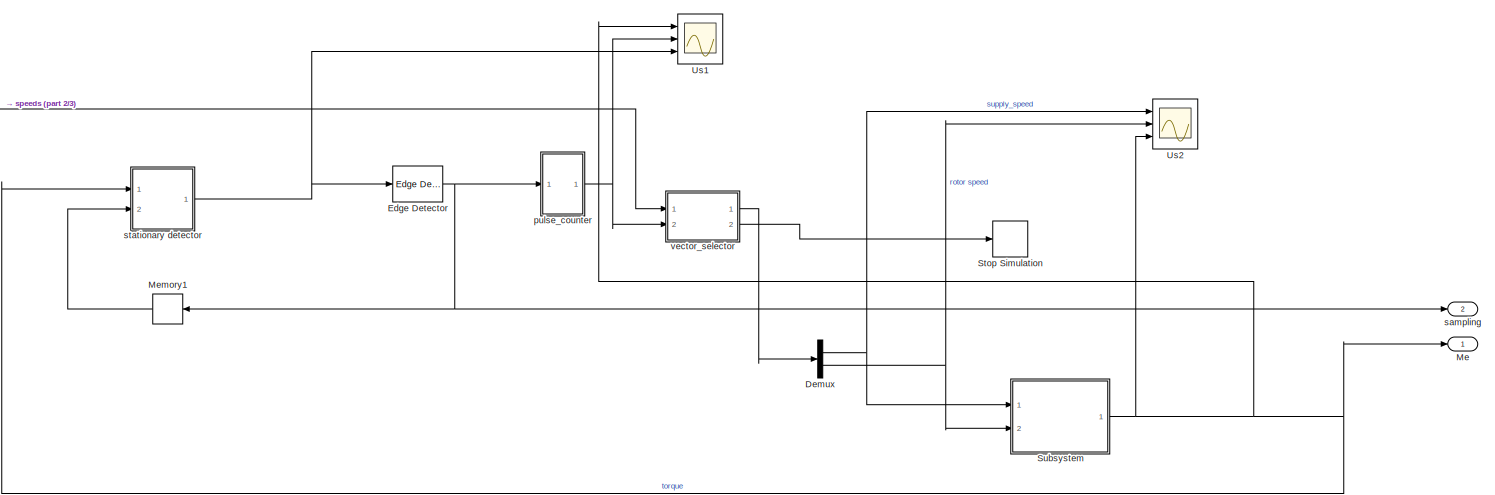
[diagram: root canvas - part 1/3, full width, top band]
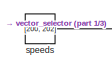
[diagram: root canvas - part 2/3, top left region]
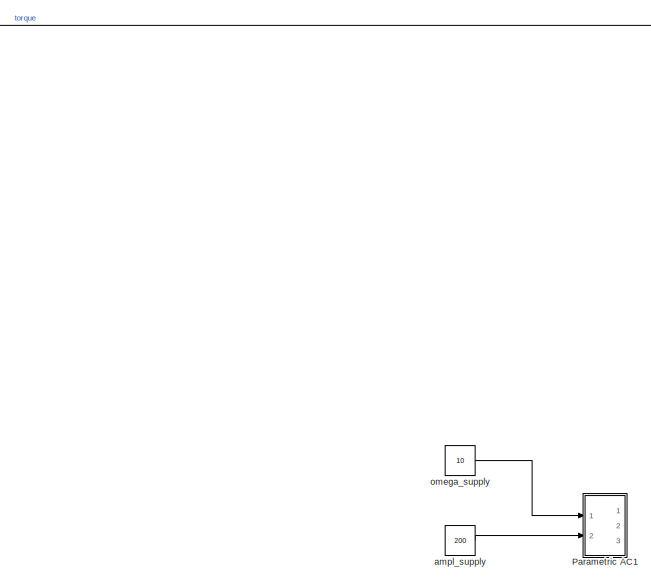
[diagram: root canvas - part 3/3, bottom center region]
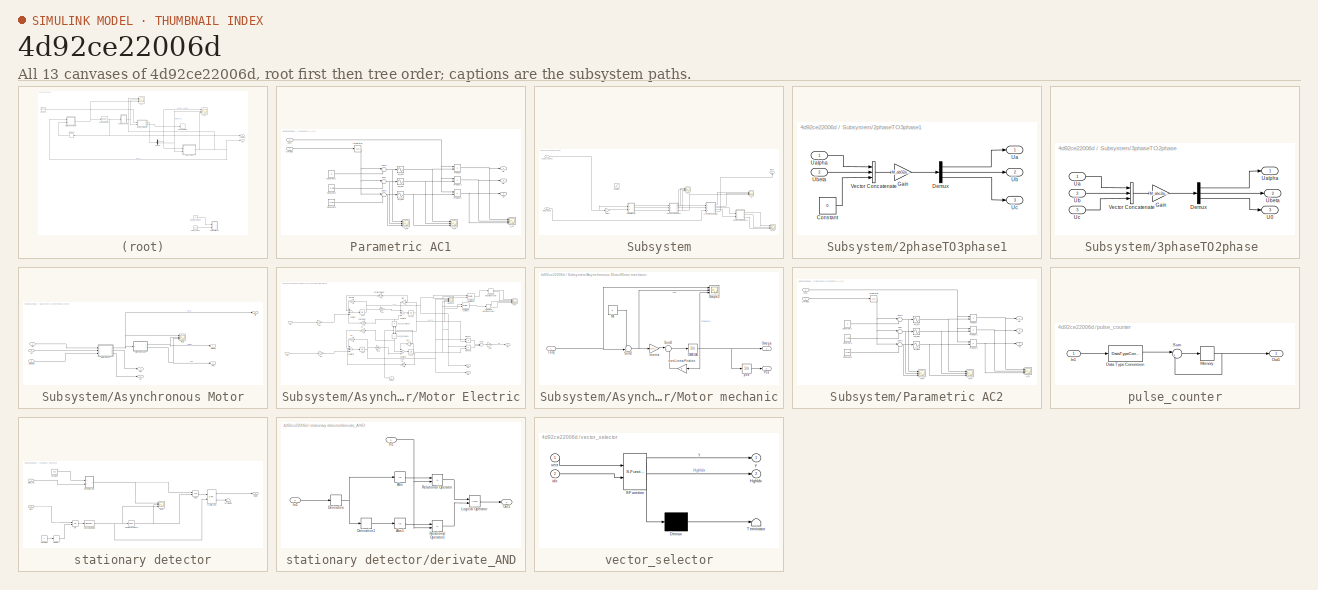
[diagram: thumbnail index - all 13 canvases of the model, root first then tree order]
MODEL slx_4d92ce22006d
KIND model
CONFIG AbsTol = auto
CONFIG FixedStep = 0.0005
CONFIG MaxStep = auto
CONFIG MinStep = auto
CONFIG RelTol = 1e-3
CONFIG SampleTimeConstraint = Unconstrained
CONFIG Solver = FixedStepAuto
CONFIG SolverMode = Auto
CONFIG SolverName = FixedStepAuto
CONFIG StartTime = 0.0
CONFIG StopTime = 10
BLOCK [Demux] Demux
  DisplayOption = bar
  Outputs = 2
  Ports = [1, 2]
BLOCK [Reference] Edge Detector  REF=powerlib_meascontrol/Logic/Edge Detector
  Ports = [1, 1]
  SourceBlock = powerlib_meascontrol/Logic/Edge Detector
  SourceType = Edge Detector
BLOCK [Outport] Me
  IconDisplay = Port number
BLOCK [Memory] Memory1
  X0 = 1
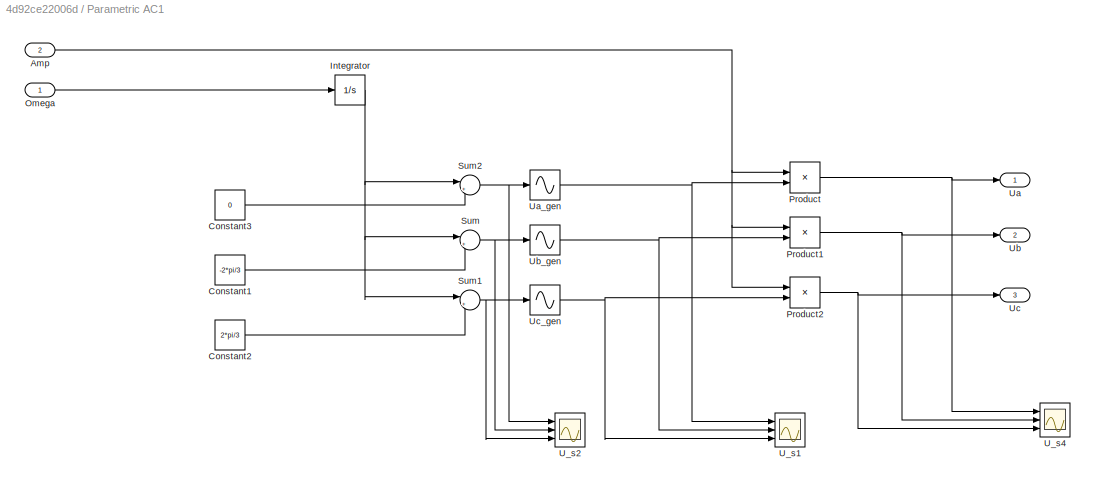
BLOCK [SubSystem] Parametric AC1
  Commented = on
  Ports = [2, 3]
  RequestExecContextInheritance = off
  Variant = off
BLOCK [Inport] Parametric AC1/Amp
  IconDisplay = Port number
  Port = 2
BLOCK [Constant] Parametric AC1/Constant1
  Value = -2*pi/3
BLOCK [Constant] Parametric AC1/Constant2
  Value = 2*pi/3
BLOCK [Constant] Parametric AC1/Constant3
  Value = 0
BLOCK [Integrator] Parametric AC1/Integrator
  Ports = [1, 1]
  WrapState = on
BLOCK [Inport] Parametric AC1/Omega
  IconDisplay = Port number
BLOCK [Product] Parametric AC1/Product
  InputSameDT = off
  OutDataTypeStr = Inherit: Inherit via internal rule
  Ports = [2, 1]
  RndMeth = Floor
  SaturateOnIntegerOverflow = off
BLOCK [Product] Parametric AC1/Product1
  InputSameDT = off
  OutDataTypeStr = Inherit: Inherit via internal rule
  Ports = [2, 1]
  RndMeth = Floor
  SaturateOnIntegerOverflow = off
BLOCK [Product] Parametric AC1/Product2
  InputSameDT = off
  OutDataTypeStr = Inherit: Inherit via internal rule
  Ports = [2, 1]
  RndMeth = Floor
  SaturateOnIntegerOverflow = off
BLOCK [Sum] Parametric AC1/Sum
  IconShape = round
  InputSameDT = off
  Inputs = |++
  OutDataTypeStr = Inherit: Inherit via internal rule
  Ports = [2, 1]
  SaturateOnIntegerOverflow = off
BLOCK [Sum] Parametric AC1/Sum1
  IconShape = round
  InputSameDT = off
  Inputs = |++
  OutDataTypeStr = Inherit: Inherit via internal rule
  Ports = [2, 1]
  SaturateOnIntegerOverflow = off
BLOCK [Sum] Parametric AC1/Sum2
  IconShape = round
  InputSameDT = off
  Inputs = |++
  OutDataTypeStr = Inherit: Inherit via internal rule
  Ports = [2, 1]
  SaturateOnIntegerOverflow = off
BLOCK [Scope] Parametric AC1/U_s1
  NumInputPorts = 3
  Ports = [3]
  ScopeSpecificationString = Simulink.scopes.TimeScopeBlockCfg('CurrentConfiguration', extmgr.ConfigurationSet(extmgr.Configuration('Core','General UI',true),extmgr.Configuration('Core','Source UI',true),extmgr.Configuration('Sources','WiredSimulink',true,'DataLoggingVariableName','ScopeData9'),extmgr.Configuration('Visuals','Time Domain',true,'SerializedDisplays',{struct('MinYLimReal','-1.25','MaxYLimReal','1.25','YLabelReal...<+1415ch>
BLOCK [Scope] Parametric AC1/U_s2
  NumInputPorts = 3
  Ports = [3]
  ScopeSpecificationString = Simulink.scopes.TimeScopeBlockCfg('CurrentConfiguration', extmgr.ConfigurationSet(extmgr.Configuration('Core','General UI',true),extmgr.Configuration('Core','Source UI',true),extmgr.Configuration('Sources','WiredSimulink',true,'DataLoggingVariableName','ScopeData10'),extmgr.Configuration('Visuals','Time Domain',true,'SerializedDisplays',{struct('MinYLimReal','-6.54476','MaxYLimReal','6.54422','YLa...<+1427ch>
BLOCK [Scope] Parametric AC1/U_s4
  NumInputPorts = 3
  Ports = [3]
  ScopeSpecificationString = Simulink.scopes.TimeScopeBlockCfg('CurrentConfiguration', extmgr.ConfigurationSet(extmgr.Configuration('Core','General UI',true),extmgr.Configuration('Core','Source UI',true),extmgr.Configuration('Sources','WiredSimulink',true,'DataLoggingVariableName','ScopeData8'),extmgr.Configuration('Visuals','Time Domain',true,'SerializedDisplays',{struct('MinYLimReal','-49999.99999','MaxYLimReal','49999.9999...<+1493ch>
BLOCK [Outport] Parametric AC1/Ua
  IconDisplay = Port number
BLOCK [Sin] Parametric AC1/Ua_gen
  Ports = [1, 1]
  SampleTime = 0
  TimeSource = Use external signal
BLOCK [Outport] Parametric AC1/Ub
  IconDisplay = Port number
  Port = 2
BLOCK [Sin] Parametric AC1/Ub_gen
  Ports = [1, 1]
  SampleTime = 0
  TimeSource = Use external signal
BLOCK [Outport] Parametric AC1/Uc
  IconDisplay = Port number
  Port = 3
BLOCK [Sin] Parametric AC1/Uc_gen
  Ports = [1, 1]
  SampleTime = 0
  TimeSource = Use external signal
BLOCK [Stop] Stop Simulation
BLOCK [SubSystem] Subsystem
  Ports = [2, 1]
  RequestExecContextInheritance = off
  Variant = off
BLOCK [SubSystem] Subsystem/2phaseTO3phase1
  Ports = [2, 3]
  RequestExecContextInheritance = off
  Variant = off
BLOCK [Constant] Subsystem/2phaseTO3phase1/Constant
  Value = 0
BLOCK [Demux] Subsystem/2phaseTO3phase1/Demux
  DisplayOption = bar
  Outputs = 3
  Ports = [1, 3]
BLOCK [Gain] Subsystem/2phaseTO3phase1/Gain
  Gain = M_ab02abc
  Multiplication = Matrix(K*u)
  OutDataTypeStr = Inherit: Inherit via internal rule
  ParamDataTypeStr = Inherit: Inherit via internal rule
  SaturateOnIntegerOverflow = off
BLOCK [Outport] Subsystem/2phaseTO3phase1/Ua
  IconDisplay = Port number
BLOCK [Inport] Subsystem/2phaseTO3phase1/Ualpha
  IconDisplay = Port number
BLOCK [Outport] Subsystem/2phaseTO3phase1/Ub
  IconDisplay = Port number
  Port = 2
BLOCK [Inport] Subsystem/2phaseTO3phase1/Ubeta
  IconDisplay = Port number
  Port = 2
BLOCK [Outport] Subsystem/2phaseTO3phase1/Uc
  IconDisplay = Port number
  Port = 3
BLOCK [Concatenate] Subsystem/2phaseTO3phase1/Vector Concatenate
  NumInputs = 3
  Ports = [3, 1]
BLOCK [SubSystem] Subsystem/3phaseTO2phase 
  Ports = [3, 3]
  RequestExecContextInheritance = off
  Variant = off
BLOCK [Demux] Subsystem/3phaseTO2phase /Demux
  DisplayOption = bar
  Outputs = 3
  Ports = [1, 3]
BLOCK [Gain] Subsystem/3phaseTO2phase /Gain
  Gain = M_abc2ab0
  Multiplication = Matrix(K*u)
  OutDataTypeStr = Inherit: Inherit via internal rule
  ParamDataTypeStr = Inherit: Inherit via internal rule
  SaturateOnIntegerOverflow = off
BLOCK [Outport] Subsystem/3phaseTO2phase /U0
  IconDisplay = Port number
  Port = 3
BLOCK [Inport] Subsystem/3phaseTO2phase /Ua
  IconDisplay = Port number
BLOCK [Outport] Subsystem/3phaseTO2phase /Ualpha
  IconDisplay = Port number
BLOCK [Inport] Subsystem/3phaseTO2phase /Ub
  IconDisplay = Port number
  Port = 2
BLOCK [Outport] Subsystem/3phaseTO2phase /Ubeta
  IconDisplay = Port number
  Port = 2
BLOCK [Inport] Subsystem/3phaseTO2phase /Uc
  IconDisplay = Port number
  Port = 3
BLOCK [Concatenate] Subsystem/3phaseTO2phase /Vector Concatenate
  NumInputs = 3
  Ports = [3, 1]
BLOCK [SubSystem] Subsystem/Asynchronous Motor
  Ports = [3, 5]
  RequestExecContextInheritance = off
  Variant = off
BLOCK [Outport] Subsystem/Asynchronous Motor/Isd
  IconDisplay = Port number
  Port = 3
BLOCK [Outport] Subsystem/Asynchronous Motor/Isq
  IconDisplay = Port number
  Port = 4
BLOCK [Outport] Subsystem/Asynchronous Motor/Me
  IconDisplay = Port number
  Port = 5
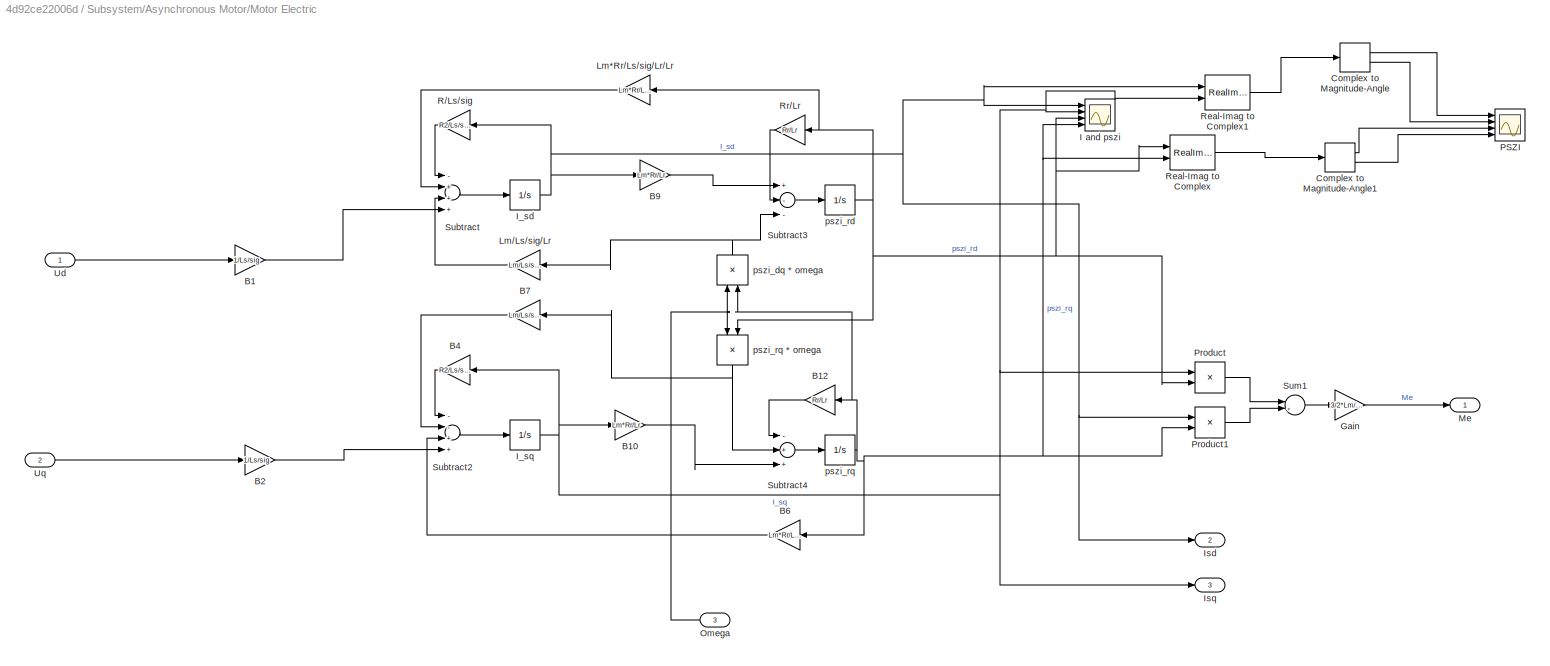
BLOCK [SubSystem] Subsystem/Asynchronous Motor/Motor Electric
  Ports = [3, 3]
  RequestExecContextInheritance = off
  Variant = off
BLOCK [Gain] Subsystem/Asynchronous Motor/Motor Electric/B1
  Gain = 1/Ls/sig
  Multiplication = Matrix(K*u)
  OutDataTypeStr = Inherit: Inherit via internal rule
  ParamDataTypeStr = Inherit: Inherit via internal rule
  SaturateOnIntegerOverflow = off
BLOCK [Gain] Subsystem/Asynchronous Motor/Motor Electric/B10
  Gain = Lm*Rr/Lr
  Multiplication = Matrix(K*u)
  OutDataTypeStr = Inherit: Inherit via internal rule
  ParamDataTypeStr = Inherit: Inherit via internal rule
  SaturateOnIntegerOverflow = off
BLOCK [Gain] Subsystem/Asynchronous Motor/Motor Electric/B12
  Gain = Rr/Lr
  Multiplication = Matrix(K*u)
  OutDataTypeStr = Inherit: Inherit via internal rule
  ParamDataTypeStr = Inherit: Inherit via internal rule
  SaturateOnIntegerOverflow = off
BLOCK [Gain] Subsystem/Asynchronous Motor/Motor Electric/B2
  Gain = 1/Ls/sig
  Multiplication = Matrix(K*u)
  OutDataTypeStr = Inherit: Inherit via internal rule
  ParamDataTypeStr = Inherit: Inherit via internal rule
  SaturateOnIntegerOverflow = off
BLOCK [Gain] Subsystem/Asynchronous Motor/Motor Electric/B4
  Gain = R2/Ls/sig
  Multiplication = Matrix(K*u)
  OutDataTypeStr = Inherit: Inherit via internal rule
  ParamDataTypeStr = Inherit: Inherit via internal rule
  SaturateOnIntegerOverflow = off
BLOCK [Gain] Subsystem/Asynchronous Motor/Motor Electric/B6
  Gain = Lm*Rr/Ls/sig/Lr/Lr
  Multiplication = Matrix(K*u)
  OutDataTypeStr = Inherit: Inherit via internal rule
  ParamDataTypeStr = Inherit: Inherit via internal rule
  SaturateOnIntegerOverflow = off
BLOCK [Gain] Subsystem/Asynchronous Motor/Motor Electric/B7
  Gain = Lm/Ls/sig/Lr
  Multiplication = Matrix(K*u)
  OutDataTypeStr = Inherit: Inherit via internal rule
  ParamDataTypeStr = Inherit: Inherit via internal rule
  SaturateOnIntegerOverflow = off
BLOCK [Gain] Subsystem/Asynchronous Motor/Motor Electric/B9
  Gain = Lm*Rr/Lr
  Multiplication = Matrix(K*u)
  OutDataTypeStr = Inherit: Inherit via internal rule
  ParamDataTypeStr = Inherit: Inherit via internal rule
  SaturateOnIntegerOverflow = off
BLOCK [ComplexToMagnitudeAngle] Subsystem/Asynchronous Motor/Motor Electric/Complex to Magnitude-Angle
  Ports = [1, 2]
BLOCK [ComplexToMagnitudeAngle] Subsystem/Asynchronous Motor/Motor Electric/Complex to Magnitude-Angle1
  Ports = [1, 2]
BLOCK [Gain] Subsystem/Asynchronous Motor/Motor Electric/Gain
  Gain = 3/2*Lm/Lr
  OutDataTypeStr = Inherit: Inherit via internal rule
  ParamDataTypeStr = Inherit: Inherit via internal rule
  SaturateOnIntegerOverflow = off
BLOCK [Scope] Subsystem/Asynchronous Motor/Motor Electric/I and pszi
  NumInputPorts = 4
  Ports = [4]
  ScopeSpecificationString = Simulink.scopes.TimeScopeBlockCfg('CurrentConfiguration', extmgr.ConfigurationSet(extmgr.Configuration('Core','General UI',true),extmgr.Configuration('Core','Source UI',true),extmgr.Configuration('Sources','WiredSimulink',true),extmgr.Configuration('Visuals','Time Domain',true,'SerializedDisplays',{struct('MinYLimReal','-0.35721','MaxYLimReal','0.2837','YLabelReal','','MinYLimMag','0.00000','MaxYL...<+1453ch>
BLOCK [Integrator] Subsystem/Asynchronous Motor/Motor Electric/I_sd
  Ports = [1, 1]
BLOCK [Integrator] Subsystem/Asynchronous Motor/Motor Electric/I_sq
  Ports = [1, 1]
BLOCK [Outport] Subsystem/Asynchronous Motor/Motor Electric/Isd
  IconDisplay = Port number
  Port = 2
BLOCK [Outport] Subsystem/Asynchronous Motor/Motor Electric/Isq
  IconDisplay = Port number
  Port = 3
BLOCK [Gain] Subsystem/Asynchronous Motor/Motor Electric/Lm*Rr//Ls//sig//Lr//Lr
  Gain = Lm*Rr/Ls/sig/Lr/Lr
  Multiplication = Matrix(K*u)
  OutDataTypeStr = Inherit: Inherit via internal rule
  ParamDataTypeStr = Inherit: Inherit via internal rule
  SaturateOnIntegerOverflow = off
BLOCK [Gain] Subsystem/Asynchronous Motor/Motor Electric/Lm//Ls//sig//Lr
  Gain = Lm/Ls/sig/Lr
  Multiplication = Matrix(K*u)
  OutDataTypeStr = Inherit: Inherit via internal rule
  ParamDataTypeStr = Inherit: Inherit via internal rule
  SaturateOnIntegerOverflow = off
BLOCK [Outport] Subsystem/Asynchronous Motor/Motor Electric/Me
  IconDisplay = Port number
BLOCK [Inport] Subsystem/Asynchronous Motor/Motor Electric/Omega
  IconDisplay = Port number
  Port = 3
BLOCK [Scope] Subsystem/Asynchronous Motor/Motor Electric/PSZI
  NumInputPorts = 4
  Ports = [4]
  ScopeSpecificationString = Simulink.scopes.TimeScopeBlockCfg('CurrentConfiguration', extmgr.ConfigurationSet(extmgr.Configuration('Core','General UI',true),extmgr.Configuration('Core','Source UI',true),extmgr.Configuration('Sources','WiredSimulink',true,'DataLoggingVariableName','ScopeData2'),extmgr.Configuration('Visuals','Time Domain',true,'SerializedDisplays',{struct('MinYLimReal','-4.61529','MaxYLimReal','10.12263','YLa...<+1979ch>
BLOCK [Product] Subsystem/Asynchronous Motor/Motor Electric/Product
  InputSameDT = off
  OutDataTypeStr = Inherit: Inherit via internal rule
  Ports = [2, 1]
  RndMeth = Floor
  SaturateOnIntegerOverflow = off
BLOCK [Product] Subsystem/Asynchronous Motor/Motor Electric/Product1
  InputSameDT = off
  OutDataTypeStr = Inherit: Inherit via internal rule
  Ports = [2, 1]
  RndMeth = Floor
  SaturateOnIntegerOverflow = off
BLOCK [Gain] Subsystem/Asynchronous Motor/Motor Electric/R//Ls//sig
  Gain = R2/Ls/sig
  Multiplication = Matrix(K*u)
  OutDataTypeStr = Inherit: Inherit via internal rule
  ParamDataTypeStr = Inherit: Inherit via internal rule
  SaturateOnIntegerOverflow = off
BLOCK [RealImagToComplex] Subsystem/Asynchronous Motor/Motor Electric/Real-Imag to Complex
  Ports = [2, 1]
BLOCK [RealImagToComplex] Subsystem/Asynchronous Motor/Motor Electric/Real-Imag to Complex1
  Ports = [2, 1]
BLOCK [Gain] Subsystem/Asynchronous Motor/Motor Electric/Rr//Lr
  Gain = Rr/Lr
  Multiplication = Matrix(K*u)
  OutDataTypeStr = Inherit: Inherit via internal rule
  ParamDataTypeStr = Inherit: Inherit via internal rule
  SaturateOnIntegerOverflow = off
BLOCK [Sum] Subsystem/Asynchronous Motor/Motor Electric/Subtract
  InputSameDT = off
  Inputs = -+++
  OutDataTypeStr = Inherit: Inherit via internal rule
  Ports = [4, 1]
  SaturateOnIntegerOverflow = off
BLOCK [Sum] Subsystem/Asynchronous Motor/Motor Electric/Subtract2
  InputSameDT = off
  Inputs = --++
  OutDataTypeStr = Inherit: Inherit via internal rule
  Ports = [4, 1]
  SaturateOnIntegerOverflow = off
BLOCK [Sum] Subsystem/Asynchronous Motor/Motor Electric/Subtract3
  InputSameDT = off
  Inputs = +--
  OutDataTypeStr = Inherit: Inherit via internal rule
  Ports = [3, 1]
  SaturateOnIntegerOverflow = off
BLOCK [Sum] Subsystem/Asynchronous Motor/Motor Electric/Subtract4
  InputSameDT = off
  Inputs = -++
  OutDataTypeStr = Inherit: Inherit via internal rule
  Ports = [3, 1]
  SaturateOnIntegerOverflow = off
BLOCK [Sum] Subsystem/Asynchronous Motor/Motor Electric/Sum1
  IconShape = round
  InputSameDT = off
  Inputs = |+-|
  OutDataTypeStr = Inherit: Inherit via internal rule
  Ports = [2, 1]
  SaturateOnIntegerOverflow = off
BLOCK [Inport] Subsystem/Asynchronous Motor/Motor Electric/Ud
  IconDisplay = Port number
BLOCK [Inport] Subsystem/Asynchronous Motor/Motor Electric/Uq
  IconDisplay = Port number
  Port = 2
BLOCK [Product] Subsystem/Asynchronous Motor/Motor Electric/pszi_dq * omega
  InputSameDT = off
  OutDataTypeStr = Inherit: Inherit via internal rule
  Ports = [2, 1]
  RndMeth = Floor
  SaturateOnIntegerOverflow = off
BLOCK [Integrator] Subsystem/Asynchronous Motor/Motor Electric/pszi_rd
  Ports = [1, 1]
BLOCK [Integrator] Subsystem/Asynchronous Motor/Motor Electric/pszi_rq 
  Ports = [1, 1]
BLOCK [Product] Subsystem/Asynchronous Motor/Motor Electric/pszi_rq * omega
  InputSameDT = off
  OutDataTypeStr = Inherit: Inherit via internal rule
  Ports = [2, 1]
  RndMeth = Floor
  SaturateOnIntegerOverflow = off
BLOCK [SubSystem] Subsystem/Asynchronous Motor/Motor mechanic
  Ports = [1, 2]
  RequestExecContextInheritance = off
  Variant = off
BLOCK [Gain] Subsystem/Asynchronous Motor/Motor mechanic/Inertia
  Gain = 1/0.1
  OutDataTypeStr = Inherit: Inherit via internal rule
  ParamDataTypeStr = Inherit: Inherit via internal rule
  SaturateOnIntegerOverflow = off
BLOCK [Constant] Subsystem/Asynchronous Motor/Motor mechanic/Mt
  Value = 0
BLOCK [Integrator] Subsystem/Asynchronous Motor/Motor mechanic/OMEGA
  Ports = [1, 1]
BLOCK [Outport] Subsystem/Asynchronous Motor/Motor mechanic/Omega
  IconDisplay = Port number
BLOCK [Outport] Subsystem/Asynchronous Motor/Motor mechanic/Pos
  IconDisplay = Port number
  Port = 2
BLOCK [Scope] Subsystem/Asynchronous Motor/Motor mechanic/Scope2
  NumInputPorts = 3
  Ports = [3]
  ScopeSpecificationString = Simulink.scopes.TimeScopeBlockCfg('CurrentConfiguration', extmgr.ConfigurationSet(extmgr.Configuration('Core','General UI',true),extmgr.Configuration('Core','Source UI',true),extmgr.Configuration('Sources','WiredSimulink',true,'DataLoggingVariableName','ScopeData2'),extmgr.Configuration('Visuals','Time Domain',true,'SerializedDisplays',{struct('MinYLimReal','-303.80332','MaxYLimReal','-258.5018','...<+1487ch>
BLOCK [Sum] Subsystem/Asynchronous Motor/Motor mechanic/Sum2
  IconShape = round
  InputSameDT = off
  Inputs = -+|
  OutDataTypeStr = Inherit: Inherit via internal rule
  Ports = [2, 1]
  SaturateOnIntegerOverflow = off
BLOCK [Sum] Subsystem/Asynchronous Motor/Motor mechanic/Sum3
  IconShape = round
  InputSameDT = off
  Inputs = |+-
  OutDataTypeStr = Inherit: Inherit via internal rule
  Ports = [2, 1]
  SaturateOnIntegerOverflow = off
BLOCK [Inport] Subsystem/Asynchronous Motor/Motor mechanic/Torq 
  IconDisplay = Port number
BLOCK [Gain] Subsystem/Asynchronous Motor/Motor mechanic/nonLinearFriction
  Gain = 0
  OutDataTypeStr = Inherit: Inherit via internal rule
  ParamDataTypeStr = Inherit: Inherit via internal rule
  SaturateOnIntegerOverflow = off
BLOCK [Integrator] Subsystem/Asynchronous Motor/Motor mechanic/pos
  Ports = [1, 1]
  WrapState = on
BLOCK [Outport] Subsystem/Asynchronous Motor/Omega
  IconDisplay = Port number
BLOCK [Inport] Subsystem/Asynchronous Motor/OmegaIn
  IconDisplay = Port number
  Port = 3
BLOCK [Outport] Subsystem/Asynchronous Motor/Pos
  IconDisplay = Port number
  Port = 2
BLOCK [Inport] Subsystem/Asynchronous Motor/Ud
  IconDisplay = Port number
BLOCK [Inport] Subsystem/Asynchronous Motor/Us
  IconDisplay = Port number
  Port = 2
BLOCK [Scope] Subsystem/Asynchronous Motor/test1
  NumInputPorts = 3
  Ports = [3]
  ScopeSpecificationString = Simulink.scopes.TimeScopeBlockCfg('CurrentConfiguration', extmgr.ConfigurationSet(extmgr.Configuration('Core','General UI',true),extmgr.Configuration('Core','Source UI',true),extmgr.Configuration('Sources','WiredSimulink',true,'DataLoggingVariableName','ScopeData3'),extmgr.Configuration('Visuals','Time Domain',true,'SerializedDisplays',{struct('MinYLimReal','-67.77944','MaxYLimReal','578.60722','Y...<+1460ch>
BLOCK [Gain] Subsystem/Gain3
  OutDataTypeStr = Inherit: Inherit via internal rule
  ParamDataTypeStr = Inherit: Inherit via internal rule
  SaturateOnIntegerOverflow = off
BLOCK [SubSystem] Subsystem/Parametric AC2
  Ports = [2, 3]
  RequestExecContextInheritance = off
  Variant = off
BLOCK [Inport] Subsystem/Parametric AC2/Amp
  IconDisplay = Port number
  Port = 2
BLOCK [Constant] Subsystem/Parametric AC2/Constant1
  Value = -2*pi/3
BLOCK [Constant] Subsystem/Parametric AC2/Constant2
  Value = 2*pi/3
BLOCK [Constant] Subsystem/Parametric AC2/Constant3
  Value = 0
BLOCK [Integrator] Subsystem/Parametric AC2/Integrator
  Ports = [1, 1]
  WrapState = on
BLOCK [Inport] Subsystem/Parametric AC2/Omega
  IconDisplay = Port number
BLOCK [Product] Subsystem/Parametric AC2/Product
  InputSameDT = off
  OutDataTypeStr = Inherit: Inherit via internal rule
  Ports = [2, 1]
  RndMeth = Floor
  SaturateOnIntegerOverflow = off
BLOCK [Product] Subsystem/Parametric AC2/Product1
  InputSameDT = off
  OutDataTypeStr = Inherit: Inherit via internal rule
  Ports = [2, 1]
  RndMeth = Floor
  SaturateOnIntegerOverflow = off
BLOCK [Product] Subsystem/Parametric AC2/Product2
  InputSameDT = off
  OutDataTypeStr = Inherit: Inherit via internal rule
  Ports = [2, 1]
  RndMeth = Floor
  SaturateOnIntegerOverflow = off
BLOCK [Sum] Subsystem/Parametric AC2/Sum
  IconShape = round
  InputSameDT = off
  Inputs = |++
  OutDataTypeStr = Inherit: Inherit via internal rule
  Ports = [2, 1]
  SaturateOnIntegerOverflow = off
BLOCK [Sum] Subsystem/Parametric AC2/Sum1
  IconShape = round
  InputSameDT = off
  Inputs = |++
  OutDataTypeStr = Inherit: Inherit via internal rule
  Ports = [2, 1]
  SaturateOnIntegerOverflow = off
BLOCK [Sum] Subsystem/Parametric AC2/Sum2
  IconShape = round
  InputSameDT = off
  Inputs = |++
  OutDataTypeStr = Inherit: Inherit via internal rule
  Ports = [2, 1]
  SaturateOnIntegerOverflow = off
BLOCK [Scope] Subsystem/Parametric AC2/U_s1
  NumInputPorts = 3
  Ports = [3]
  ScopeSpecificationString = Simulink.scopes.TimeScopeBlockCfg('CurrentConfiguration', extmgr.ConfigurationSet(extmgr.Configuration('Core','General UI',true),extmgr.Configuration('Core','Source UI',true),extmgr.Configuration('Sources','WiredSimulink',true,'DataLoggingVariableName','ScopeData9'),extmgr.Configuration('Visuals','Time Domain',true,'SerializedDisplays',{struct('MinYLimReal','-1.25','MaxYLimReal','1.25','YLabelReal...<+1391ch>
BLOCK [Scope] Subsystem/Parametric AC2/U_s2
  NumInputPorts = 3
  Ports = [3]
  ScopeSpecificationString = Simulink.scopes.TimeScopeBlockCfg('CurrentConfiguration', extmgr.ConfigurationSet(extmgr.Configuration('Core','General UI',true),extmgr.Configuration('Core','Source UI',true),extmgr.Configuration('Sources','WiredSimulink',true,'DataLoggingVariableName','ScopeData10'),extmgr.Configuration('Visuals','Time Domain',true,'SerializedDisplays',{struct('MinYLimReal','-6.54476','MaxYLimReal','6.54422','YLa...<+1410ch>
BLOCK [Scope] Subsystem/Parametric AC2/U_s4
  NumInputPorts = 3
  Ports = [3]
  ScopeSpecificationString = Simulink.scopes.TimeScopeBlockCfg('CurrentConfiguration', extmgr.ConfigurationSet(extmgr.Configuration('Core','General UI',true),extmgr.Configuration('Core','Source UI',true),extmgr.Configuration('Sources','WiredSimulink',true,'DataLoggingVariableName','ScopeData8'),extmgr.Configuration('Visuals','Time Domain',true,'SerializedDisplays',{struct('MinYLimReal','-49999.99999','MaxYLimReal','49999.9999...<+1464ch>
BLOCK [Outport] Subsystem/Parametric AC2/Ua
  IconDisplay = Port number
BLOCK [Sin] Subsystem/Parametric AC2/Ua_gen
  Ports = [1, 1]
  SampleTime = 0
  TimeSource = Use external signal
BLOCK [Outport] Subsystem/Parametric AC2/Ub
  IconDisplay = Port number
  Port = 2
BLOCK [Sin] Subsystem/Parametric AC2/Ub_gen
  Ports = [1, 1]
  SampleTime = 0
  TimeSource = Use external signal
BLOCK [Outport] Subsystem/Parametric AC2/Uc
  IconDisplay = Port number
  Port = 3
BLOCK [Sin] Subsystem/Parametric AC2/Uc_gen
  Ports = [1, 1]
  SampleTime = 0
  TimeSource = Use external signal
BLOCK [Saturate] Subsystem/Saturation
  Commented = on
  InputPortMap = u0
  LowerLimit = 50
  Ports = [1, 1]
  UpperLimit = 300
BLOCK [Scope] Subsystem/U_s3
  NumInputPorts = 3
  Ports = [3]
  ScopeSpecificationString = Simulink.scopes.TimeScopeBlockCfg('CurrentConfiguration', extmgr.ConfigurationSet(extmgr.Configuration('Core','General UI',true),extmgr.Configuration('Core','Source UI',true),extmgr.Configuration('Sources','WiredSimulink',true,'DataLoggingVariableName','ScopeData7'),extmgr.Configuration('Visuals','Time Domain',true,'SerializedDisplays',{struct('MinYLimReal','-27.47781','MaxYLimReal','28.93227','YL...<+1493ch>
BLOCK [Scope] Subsystem/Us
  NumInputPorts = 3
  Ports = [3]
  ScopeSpecificationString = Simulink.scopes.TimeScopeBlockCfg('CurrentConfiguration', extmgr.ConfigurationSet(extmgr.Configuration('Core','General UI',true),extmgr.Configuration('Core','Source UI',true),extmgr.Configuration('Sources','WiredSimulink',true,'DataLoggingVariableName','ScopeData5'),extmgr.Configuration('Visuals','Time Domain',true,'SerializedDisplays',{struct('MinYLimReal','-3919.68866','MaxYLimReal','439.01026',...<+1547ch>
BLOCK [Scope] Subsystem/Us2
  NumInputPorts = 3
  Ports = [3]
  ScopeSpecificationString = Simulink.scopes.TimeScopeBlockCfg('CurrentConfiguration', extmgr.ConfigurationSet(extmgr.Configuration('Core','General UI',true),extmgr.Configuration('Core','Source UI',true),extmgr.Configuration('Sources','WiredSimulink',true,'DataLoggingVariableName','ScopeData2'),extmgr.Configuration('Visuals','Time Domain',true,'SerializedDisplays',{struct('MinYLimReal','-37.5','MaxYLimReal','37.5','YLabelReal...<+1469ch>
BLOCK [Inport] Subsystem/rotor_speed
  IconDisplay = Port number
  Port = 2
BLOCK [Inport] Subsystem/supply_speed
  IconDisplay = Port number
BLOCK [Outport] Subsystem/torque
  IconDisplay = Port number
BLOCK [Scope] Us1
  NumInputPorts = 3
  Ports = [3]
  ScopeSpecificationString = Simulink.scopes.TimeScopeBlockCfg('CurrentConfiguration', extmgr.ConfigurationSet(extmgr.Configuration('Core','General UI',true),extmgr.Configuration('Core','Source UI',true),extmgr.Configuration('Sources','WiredSimulink',true,'DataLoggingVariableName','ScopeData1'),extmgr.Configuration('Visuals','Time Domain',true,'SerializedDisplays',{struct('MinYLimReal','-1.15345','MaxYLimReal','1.12788','YLab...<+2854ch>
BLOCK [Scope] Us2
  NumInputPorts = 3
  Ports = [3]
  ScopeSpecificationString = Simulink.scopes.TimeScopeBlockCfg('CurrentConfiguration', extmgr.ConfigurationSet(extmgr.Configuration('Core','General UI',true),extmgr.Configuration('Core','Source UI',true),extmgr.Configuration('Sources','WiredSimulink',true,'DataLoggingVariableName','ScopeData1'),extmgr.Configuration('Visuals','Time Domain',true,'SerializedDisplays',{struct('MinYLimReal','-18.75','MaxYLimReal','168.75','YLabelR...<+2841ch>
BLOCK [Constant] ampl_supply
  Commented = on
  Value = 200
BLOCK [Constant] omega_supply
  Commented = on
  Value = 10
BLOCK [SubSystem] pulse_counter
  Ports = [1, 1]
  RequestExecContextInheritance = off
  Variant = off
BLOCK [DataTypeConversion] pulse_counter/Data Type Conversion
  OutDataTypeStr = double
  RndMeth = Ceiling
  SaturateOnIntegerOverflow = off
BLOCK [Inport] pulse_counter/In1
  IconDisplay = Port number
BLOCK [Memory] pulse_counter/Memory
  X0 = 1
BLOCK [Outport] pulse_counter/Out1
  IconDisplay = Port number
BLOCK [Sum] pulse_counter/Sum
  IconShape = round
  InputSameDT = off
  Inputs = |++
  OutDataTypeStr = Inherit: Inherit via internal rule
  Ports = [2, 1]
  SaturateOnIntegerOverflow = off
BLOCK [Outport] sampling
  IconDisplay = Port number
  Port = 2
BLOCK [Constant] speeds
  Value = [200, 202]
BLOCK [SubSystem] stationary detector
  Ports = [2, 1]
  RequestExecContextInheritance = off
  Variant = off
BLOCK [Logic] stationary detector/AND1
  AllPortsSameDT = off
  IconShape = distinctive
  OutDataTypeStr = boolean
  Ports = [2, 1]
BLOCK [Reference] stationary detector/Compare To Zero  REF=simulink/Logic and Bit
Operations/Compare
To Zero
  Ports = [1, 1]
  SourceBlock = simulink/Logic and Bit\nOperations/Compare\nTo Zero
  SourceType = Compare To Zero
BLOCK [Constant] stationary detector/Constant
  Value = 0.01
BLOCK [Constant] stationary detector/Constant1
  Value = 0
BLOCK [Memory] stationary detector/Memory
  X0 = 1
BLOCK [Reference] stationary detector/Monostable blind  REF=powerlib_meascontrol/Logic/Monostable
  Ports = [1, 1]
  SourceBlock = powerlib_meascontrol/Logic/Monostable
  SourceType = Monostable
BLOCK [Logic] stationary detector/OR
  AllPortsSameDT = off
  IconShape = distinctive
  Operator = OR
  OutDataTypeStr = boolean
  Ports = [2, 1]
BLOCK [Reference] stationary detector/S-R Flip-Flop  REF=simulink_extras/Flip Flops/S-R
Flip-Flop
  Ports = [2, 2]
  SourceBlock = simulink_extras/Flip Flops/S-R\nFlip-Flop
  SourceType = SRFlipFlop
BLOCK [Terminator] stationary detector/Terminator
BLOCK [SubSystem] stationary detector/derivate_AND
  Ports = [2, 1]
  RequestExecContextInheritance = off
  Variant = off
BLOCK [Abs] stationary detector/derivate_AND/Abs
  SaturateOnIntegerOverflow = off
BLOCK [Abs] stationary detector/derivate_AND/Abs1
  SaturateOnIntegerOverflow = off
BLOCK [Derivative] stationary detector/derivate_AND/Derivative
BLOCK [Derivative] stationary detector/derivate_AND/Derivative1
BLOCK [Inport] stationary detector/derivate_AND/In1
  IconDisplay = Port number
BLOCK [Inport] stationary detector/derivate_AND/In2
  IconDisplay = Port number
  Port = 2
BLOCK [Logic] stationary detector/derivate_AND/Logical Operator
  AllPortsSameDT = off
  OutDataTypeStr = boolean
  Ports = [2, 1]
BLOCK [Outport] stationary detector/derivate_AND/Out1
  IconDisplay = Port number
BLOCK [RelationalOperator] stationary detector/derivate_AND/Relational Operator
  InputSameDT = off
  Operator = <=
  OutDataTypeStr = boolean
  Ports = [2, 1]
BLOCK [RelationalOperator] stationary detector/derivate_AND/Relational Operator1
  InputSameDT = off
  Operator = <=
  OutDataTypeStr = boolean
  Ports = [2, 1]
BLOCK [Outport] stationary detector/stable
  IconDisplay = Port number
BLOCK [Inport] stationary detector/start
  IconDisplay = Port number
  Port = 2
BLOCK [Inport] stationary detector/state_var
  IconDisplay = Port number
BLOCK [Scope] stationary detector/test2
  NumInputPorts = 3
  Ports = [3]
  ScopeSpecificationString = Simulink.scopes.TimeScopeBlockCfg('CurrentConfiguration', extmgr.ConfigurationSet(extmgr.Configuration('Core','General UI',true),extmgr.Configuration('Core','Source UI',true),extmgr.Configuration('Sources','WiredSimulink',true,'DataLoggingVariableName','ScopeData2'),extmgr.Configuration('Visuals','Time Domain',true,'SerializedDisplays',{struct('MinYLimReal','-0.125','MaxYLimReal','1.125','YLabelRe...<+2819ch>
BLOCK [SubSystem] vector_selector
  ErrorFcn = Stateflow.Translate.translate
  PermitHierarchicalResolution = ExplicitOnly
  Ports = [2, 2]
  RequestExecContextInheritance = off
  SFBlockType = MATLAB Function
  TreatAsAtomicUnit = on
  Variant = off
BLOCK [Demux] vector_selector/ Demux 
  Outputs = 1
  Ports = [1, 1]
BLOCK [S-Function] vector_selector/ SFunction 
  EnableBusSupport = on
  FunctionName = sf_sfun
  PortCounts = [2 3]
  Ports = [2, 3]
  SFunctionDeploymentMode = off
  Tag = Stateflow S-Function om_M4 2
BLOCK [Terminator] vector_selector/ Terminator 
BLOCK [Outport] vector_selector/HghIdx
  IconDisplay = Port number
  Port = 2
BLOCK [Inport] vector_selector/idx
  IconDisplay = Port number
  Port = 2
BLOCK [Inport] vector_selector/vect
  IconDisplay = Port number
BLOCK [Outport] vector_selector/y
  IconDisplay = Port number
NET Demux:1 -> Subsystem:1, Us2:1
NET Demux:2 -> Subsystem:2, Us2:2
NET Edge Detector:1 -> Memory1:1, pulse_counter:1, sampling:1
LINE Memory1:1 -> stationary detector:2
NET Parametric AC1/Amp:1 -> Parametric AC1/Product1:1, Parametric AC1/Product2:1, Parametric AC1/Product:1
LINE Parametric AC1/Constant1:1 -> Parametric AC1/Sum:2
LINE Parametric AC1/Constant2:1 -> Parametric AC1/Sum1:2
LINE Parametric AC1/Constant3:1 -> Parametric AC1/Sum2:2
NET Parametric AC1/Integrator:1 -> Parametric AC1/Sum1:1, Parametric AC1/Sum2:1, Parametric AC1/Sum:1
LINE Parametric AC1/Omega:1 -> Parametric AC1/Integrator:1
NET Parametric AC1/Product1:1 -> Parametric AC1/U_s4:2, Parametric AC1/Ub:1
NET Parametric AC1/Product2:1 -> Parametric AC1/U_s4:3, Parametric AC1/Uc:1
NET Parametric AC1/Product:1 -> Parametric AC1/U_s4:1, Parametric AC1/Ua:1
NET Parametric AC1/Sum1:1 -> Parametric AC1/U_s2:3, Parametric AC1/Uc_gen:1
NET Parametric AC1/Sum2:1 -> Parametric AC1/U_s2:1, Parametric AC1/Ua_gen:1
NET Parametric AC1/Sum:1 -> Parametric AC1/U_s2:2, Parametric AC1/Ub_gen:1
NET Parametric AC1/Ua_gen:1 -> Parametric AC1/Product:2, Parametric AC1/U_s1:1
NET Parametric AC1/Ub_gen:1 -> Parametric AC1/Product1:2, Parametric AC1/U_s1:2
NET Parametric AC1/Uc_gen:1 -> Parametric AC1/Product2:2, Parametric AC1/U_s1:3
LINE Subsystem/2phaseTO3phase1/Constant:1 -> Subsystem/2phaseTO3phase1/Vector Concatenate:3
LINE Subsystem/2phaseTO3phase1/Demux:1 -> Subsystem/2phaseTO3phase1/Ua:1
LINE Subsystem/2phaseTO3phase1/Demux:2 -> Subsystem/2phaseTO3phase1/Ub:1
LINE Subsystem/2phaseTO3phase1/Demux:3 -> Subsystem/2phaseTO3phase1/Uc:1
LINE Subsystem/2phaseTO3phase1/Gain:1 -> Subsystem/2phaseTO3phase1/Demux:1
LINE Subsystem/2phaseTO3phase1/Ualpha:1 -> Subsystem/2phaseTO3phase1/Vector Concatenate:1
LINE Subsystem/2phaseTO3phase1/Ubeta:1 -> Subsystem/2phaseTO3phase1/Vector Concatenate:2
LINE Subsystem/2phaseTO3phase1/Vector Concatenate:1 -> Subsystem/2phaseTO3phase1/Gain:1
LINE Subsystem/2phaseTO3phase1:1 -> Subsystem/U_s3:1
LINE Subsystem/2phaseTO3phase1:2 -> Subsystem/U_s3:2
LINE Subsystem/2phaseTO3phase1:3 -> Subsystem/U_s3:3
LINE Subsystem/3phaseTO2phase /Demux:1 -> Subsystem/3phaseTO2phase /Ualpha:1
LINE Subsystem/3phaseTO2phase /Demux:2 -> Subsystem/3phaseTO2phase /Ubeta:1
LINE Subsystem/3phaseTO2phase /Demux:3 -> Subsystem/3phaseTO2phase /U0:1
LINE Subsystem/3phaseTO2phase /Gain:1 -> Subsystem/3phaseTO2phase /Demux:1
LINE Subsystem/3phaseTO2phase /Ua:1 -> Subsystem/3phaseTO2phase /Vector Concatenate:1
LINE Subsystem/3phaseTO2phase /Ub:1 -> Subsystem/3phaseTO2phase /Vector Concatenate:2
LINE Subsystem/3phaseTO2phase /Uc:1 -> Subsystem/3phaseTO2phase /Vector Concatenate:3
LINE Subsystem/3phaseTO2phase /Vector Concatenate:1 -> Subsystem/3phaseTO2phase /Gain:1
NET Subsystem/3phaseTO2phase :1 -> Subsystem/Asynchronous Motor:1, Subsystem/Us2:1
NET Subsystem/3phaseTO2phase :2 -> Subsystem/Asynchronous Motor:2, Subsystem/Us2:2
NET Subsystem/3phaseTO2phase :3 -> Subsystem/Us2:3, Subsystem/Us:3
LINE Subsystem/Asynchronous Motor/Motor Electric/B10:1 -> Subsystem/Asynchronous Motor/Motor Electric/Subtract4:3
LINE Subsystem/Asynchronous Motor/Motor Electric/B12:1 -> Subsystem/Asynchronous Motor/Motor Electric/Subtract4:1
LINE Subsystem/Asynchronous Motor/Motor Electric/B1:1 -> Subsystem/Asynchronous Motor/Motor Electric/Subtract:4
LINE Subsystem/Asynchronous Motor/Motor Electric/B2:1 -> Subsystem/Asynchronous Motor/Motor Electric/Subtract2:4
LINE Subsystem/Asynchronous Motor/Motor Electric/B4:1 -> Subsystem/Asynchronous Motor/Motor Electric/Subtract2:1
LINE Subsystem/Asynchronous Motor/Motor Electric/B6:1 -> Subsystem/Asynchronous Motor/Motor Electric/Subtract2:3
LINE Subsystem/Asynchronous Motor/Motor Electric/B7:1 -> Subsystem/Asynchronous Motor/Motor Electric/Subtract2:2
LINE Subsystem/Asynchronous Motor/Motor Electric/B9:1 -> Subsystem/Asynchronous Motor/Motor Electric/Subtract3:1
LINE Subsystem/Asynchronous Motor/Motor Electric/Complex to Magnitude-Angle1:1 -> Subsystem/Asynchronous Motor/Motor Electric/PSZI:3
LINE Subsystem/Asynchronous Motor/Motor Electric/Complex to Magnitude-Angle1:2 -> Subsystem/Asynchronous Motor/Motor Electric/PSZI:4
LINE Subsystem/Asynchronous Motor/Motor Electric/Complex to Magnitude-Angle:1 -> Subsystem/Asynchronous Motor/Motor Electric/PSZI:1
LINE Subsystem/Asynchronous Motor/Motor Electric/Complex to Magnitude-Angle:2 -> Subsystem/Asynchronous Motor/Motor Electric/PSZI:2
LINE Subsystem/Asynchronous Motor/Motor Electric/Gain:1 -> Subsystem/Asynchronous Motor/Motor Electric/Me:1
NET Subsystem/Asynchronous Motor/Motor Electric/I_sd:1 -> Subsystem/Asynchronous Motor/Motor Electric/B9:1, Subsystem/Asynchronous Motor/Motor Electric/I and pszi:1, Subsystem/Asynchronous Motor/Motor Electric/Isd:1, Subsystem/Asynchronous Motor/Motor Electric/Product1:1, Subsystem/Asynchronous Motor/Motor Electric/R//Ls//sig:1, Subsystem/Asynchronous Motor/Motor Electric/Real-Imag to Complex1:1
NET Subsystem/Asynchronous Motor/Motor Electric/I_sq:1 -> Subsystem/Asynchronous Motor/Motor Electric/B10:1, Subsystem/Asynchronous Motor/Motor Electric/B4:1, Subsystem/Asynchronous Motor/Motor Electric/I and pszi:2, Subsystem/Asynchronous Motor/Motor Electric/Isq:1, Subsystem/Asynchronous Motor/Motor Electric/Product:1, Subsystem/Asynchronous Motor/Motor Electric/Real-Imag to Complex1:2
LINE Subsystem/Asynchronous Motor/Motor Electric/Lm*Rr//Ls//sig//Lr//Lr:1 -> Subsystem/Asynchronous Motor/Motor Electric/Subtract:2
LINE Subsystem/Asynchronous Motor/Motor Electric/Lm//Ls//sig//Lr:1 -> Subsystem/Asynchronous Motor/Motor Electric/Subtract:3
NET Subsystem/Asynchronous Motor/Motor Electric/Omega:1 -> Subsystem/Asynchronous Motor/Motor Electric/pszi_dq * omega:1, Subsystem/Asynchronous Motor/Motor Electric/pszi_rq * omega:1
LINE Subsystem/Asynchronous Motor/Motor Electric/Product1:1 -> Subsystem/Asynchronous Motor/Motor Electric/Sum1:2
LINE Subsystem/Asynchronous Motor/Motor Electric/Product:1 -> Subsystem/Asynchronous Motor/Motor Electric/Sum1:1
LINE Subsystem/Asynchronous Motor/Motor Electric/R//Ls//sig:1 -> Subsystem/Asynchronous Motor/Motor Electric/Subtract:1
LINE Subsystem/Asynchronous Motor/Motor Electric/Real-Imag to Complex1:1 -> Subsystem/Asynchronous Motor/Motor Electric/Complex to Magnitude-Angle:1
LINE Subsystem/Asynchronous Motor/Motor Electric/Real-Imag to Complex:1 -> Subsystem/Asynchronous Motor/Motor Electric/Complex to Magnitude-Angle1:1
LINE Subsystem/Asynchronous Motor/Motor Electric/Rr//Lr:1 -> Subsystem/Asynchronous Motor/Motor Electric/Subtract3:2
LINE Subsystem/Asynchronous Motor/Motor Electric/Subtract2:1 -> Subsystem/Asynchronous Motor/Motor Electric/I_sq:1
LINE Subsystem/Asynchronous Motor/Motor Electric/Subtract3:1 -> Subsystem/Asynchronous Motor/Motor Electric/pszi_rd:1
LINE Subsystem/Asynchronous Motor/Motor Electric/Subtract4:1 -> Subsystem/Asynchronous Motor/Motor Electric/pszi_rq :1
LINE Subsystem/Asynchronous Motor/Motor Electric/Subtract:1 -> Subsystem/Asynchronous Motor/Motor Electric/I_sd:1
LINE Subsystem/Asynchronous Motor/Motor Electric/Sum1:1 -> Subsystem/Asynchronous Motor/Motor Electric/Gain:1
LINE Subsystem/Asynchronous Motor/Motor Electric/Ud:1 -> Subsystem/Asynchronous Motor/Motor Electric/B1:1
LINE Subsystem/Asynchronous Motor/Motor Electric/Uq:1 -> Subsystem/Asynchronous Motor/Motor Electric/B2:1
NET Subsystem/Asynchronous Motor/Motor Electric/pszi_dq * omega:1 -> Subsystem/Asynchronous Motor/Motor Electric/Lm//Ls//sig//Lr:1, Subsystem/Asynchronous Motor/Motor Electric/Subtract3:3
NET Subsystem/Asynchronous Motor/Motor Electric/pszi_rd:1 -> Subsystem/Asynchronous Motor/Motor Electric/I and pszi:3, Subsystem/Asynchronous Motor/Motor Electric/Lm*Rr//Ls//sig//Lr//Lr:1, Subsystem/Asynchronous Motor/Motor Electric/Product:2, Subsystem/Asynchronous Motor/Motor Electric/Real-Imag to Complex:1, Subsystem/Asynchronous Motor/Motor Electric/Rr//Lr:1, Subsystem/Asynchronous Motor/Motor Electric/pszi_rq * omega:2
NET Subsystem/Asynchronous Motor/Motor Electric/pszi_rq * omega:1 -> Subsystem/Asynchronous Motor/Motor Electric/B7:1, Subsystem/Asynchronous Motor/Motor Electric/Subtract4:2
NET Subsystem/Asynchronous Motor/Motor Electric/pszi_rq :1 -> Subsystem/Asynchronous Motor/Motor Electric/B12:1, Subsystem/Asynchronous Motor/Motor Electric/B6:1, Subsystem/Asynchronous Motor/Motor Electric/I and pszi:4, Subsystem/Asynchronous Motor/Motor Electric/Product1:2, Subsystem/Asynchronous Motor/Motor Electric/Real-Imag to Complex:2, Subsystem/Asynchronous Motor/Motor Electric/pszi_dq * omega:2
NET Subsystem/Asynchronous Motor/Motor Electric:1 -> Subsystem/Asynchronous Motor/Me:1, Subsystem/Asynchronous Motor/Motor mechanic:1, Subsystem/Asynchronous Motor/test1:1
LINE Subsystem/Asynchronous Motor/Motor Electric:2 -> Subsystem/Asynchronous Motor/Isd:1
LINE Subsystem/Asynchronous Motor/Motor Electric:3 -> Subsystem/Asynchronous Motor/Isq:1
LINE Subsystem/Asynchronous Motor/Motor mechanic/Inertia:1 -> Subsystem/Asynchronous Motor/Motor mechanic/Sum3:1
LINE Subsystem/Asynchronous Motor/Motor mechanic/Mt:1 -> Subsystem/Asynchronous Motor/Motor mechanic/Sum2:1
NET Subsystem/Asynchronous Motor/Motor mechanic/OMEGA:1 -> Subsystem/Asynchronous Motor/Motor mechanic/Omega:1, Subsystem/Asynchronous Motor/Motor mechanic/Scope2:3, Subsystem/Asynchronous Motor/Motor mechanic/nonLinearFriction:1, Subsystem/Asynchronous Motor/Motor mechanic/pos:1
NET Subsystem/Asynchronous Motor/Motor mechanic/Sum2:1 -> Subsystem/Asynchronous Motor/Motor mechanic/Inertia:1, Subsystem/Asynchronous Motor/Motor mechanic/Scope2:2
LINE Subsystem/Asynchronous Motor/Motor mechanic/Sum3:1 -> Subsystem/Asynchronous Motor/Motor mechanic/OMEGA:1
NET Subsystem/Asynchronous Motor/Motor mechanic/Torq :1 -> Subsystem/Asynchronous Motor/Motor mechanic/Scope2:1, Subsystem/Asynchronous Motor/Motor mechanic/Sum2:2
LINE Subsystem/Asynchronous Motor/Motor mechanic/nonLinearFriction:1 -> Subsystem/Asynchronous Motor/Motor mechanic/Sum3:2
LINE Subsystem/Asynchronous Motor/Motor mechanic/pos:1 -> Subsystem/Asynchronous Motor/Motor mechanic/Pos:1
NET Subsystem/Asynchronous Motor/Motor mechanic:1 -> Subsystem/Asynchronous Motor/Omega:1, Subsystem/Asynchronous Motor/test1:2
NET Subsystem/Asynchronous Motor/Motor mechanic:2 -> Subsystem/Asynchronous Motor/Pos:1, Subsystem/Asynchronous Motor/test1:3
LINE Subsystem/Asynchronous Motor/OmegaIn:1 -> Subsystem/Asynchronous Motor/Motor Electric:3
LINE Subsystem/Asynchronous Motor/Ud:1 -> Subsystem/Asynchronous Motor/Motor Electric:1
LINE Subsystem/Asynchronous Motor/Us:1 -> Subsystem/Asynchronous Motor/Motor Electric:2
LINE Subsystem/Asynchronous Motor:1 -> Subsystem/Us:1
LINE Subsystem/Asynchronous Motor:2 -> Subsystem/Us:2
LINE Subsystem/Asynchronous Motor:3 -> Subsystem/2phaseTO3phase1:1
LINE Subsystem/Asynchronous Motor:4 -> Subsystem/2phaseTO3phase1:2
LINE Subsystem/Asynchronous Motor:5 -> Subsystem/torque:1
LINE Subsystem/Gain3:1 -> Subsystem/Parametric AC2:2
NET Subsystem/Parametric AC2/Amp:1 -> Subsystem/Parametric AC2/Product1:1, Subsystem/Parametric AC2/Product2:1, Subsystem/Parametric AC2/Product:1
LINE Subsystem/Parametric AC2/Constant1:1 -> Subsystem/Parametric AC2/Sum:2
LINE Subsystem/Parametric AC2/Constant2:1 -> Subsystem/Parametric AC2/Sum1:2
LINE Subsystem/Parametric AC2/Constant3:1 -> Subsystem/Parametric AC2/Sum2:2
NET Subsystem/Parametric AC2/Integrator:1 -> Subsystem/Parametric AC2/Sum1:1, Subsystem/Parametric AC2/Sum2:1, Subsystem/Parametric AC2/Sum:1
LINE Subsystem/Parametric AC2/Omega:1 -> Subsystem/Parametric AC2/Integrator:1
NET Subsystem/Parametric AC2/Product1:1 -> Subsystem/Parametric AC2/U_s4:2, Subsystem/Parametric AC2/Ub:1
NET Subsystem/Parametric AC2/Product2:1 -> Subsystem/Parametric AC2/U_s4:3, Subsystem/Parametric AC2/Uc:1
NET Subsystem/Parametric AC2/Product:1 -> Subsystem/Parametric AC2/U_s4:1, Subsystem/Parametric AC2/Ua:1
NET Subsystem/Parametric AC2/Sum1:1 -> Subsystem/Parametric AC2/U_s2:3, Subsystem/Parametric AC2/Uc_gen:1
NET Subsystem/Parametric AC2/Sum2:1 -> Subsystem/Parametric AC2/U_s2:1, Subsystem/Parametric AC2/Ua_gen:1
NET Subsystem/Parametric AC2/Sum:1 -> Subsystem/Parametric AC2/U_s2:2, Subsystem/Parametric AC2/Ub_gen:1
NET Subsystem/Parametric AC2/Ua_gen:1 -> Subsystem/Parametric AC2/Product:2, Subsystem/Parametric AC2/U_s1:1
NET Subsystem/Parametric AC2/Ub_gen:1 -> Subsystem/Parametric AC2/Product1:2, Subsystem/Parametric AC2/U_s1:2
NET Subsystem/Parametric AC2/Uc_gen:1 -> Subsystem/Parametric AC2/Product2:2, Subsystem/Parametric AC2/U_s1:3
LINE Subsystem/Parametric AC2:1 -> Subsystem/3phaseTO2phase :1
LINE Subsystem/Parametric AC2:2 -> Subsystem/3phaseTO2phase :2
LINE Subsystem/Parametric AC2:3 -> Subsystem/3phaseTO2phase :3
LINE Subsystem/rotor_speed:1 -> Subsystem/Asynchronous Motor:3
NET Subsystem/supply_speed:1 -> Subsystem/Gain3:1, Subsystem/Parametric AC2:1
NET Subsystem:1 -> Me:1, Us1:1, Us2:3, stationary detector:1
LINE ampl_supply:1 -> Parametric AC1:2
LINE omega_supply:1 -> Parametric AC1:1
LINE pulse_counter/Data Type Conversion:1 -> pulse_counter/Sum:1
LINE pulse_counter/In1:1 -> pulse_counter/Data Type Conversion:1
NET pulse_counter/Memory:1 -> pulse_counter/Out1:1, pulse_counter/Sum:2
LINE pulse_counter/Sum:1 -> pulse_counter/Memory:1
NET pulse_counter:1 -> Us1:2, vector_selector:2
LINE speeds:1 -> vector_selector:1
LINE stationary detector/AND1:1 -> stationary detector/S-R Flip-Flop:1
NET stationary detector/Compare To Zero:1 -> stationary detector/AND1:2, stationary detector/test2:2
LINE stationary detector/Constant1:1 -> stationary detector/Memory:1
LINE stationary detector/Constant:1 -> stationary detector/derivate_AND:1
LINE stationary detector/Memory:1 -> stationary detector/OR:2
NET stationary detector/Monostable blind:1 -> stationary detector/Compare To Zero:1, stationary detector/S-R Flip-Flop:2, stationary detector/test2:3
LINE stationary detector/OR:1 -> stationary detector/Monostable blind:1
LINE stationary detector/S-R Flip-Flop:1 -> stationary detector/stable:1
LINE stationary detector/S-R Flip-Flop:2 -> stationary detector/Terminator:1
LINE stationary detector/derivate_AND/Abs1:1 -> stationary detector/derivate_AND/Relational Operator1:1
LINE stationary detector/derivate_AND/Abs:1 -> stationary detector/derivate_AND/Relational Operator:1
LINE stationary detector/derivate_AND/Derivative1:1 -> stationary detector/derivate_AND/Abs1:1
NET stationary detector/derivate_AND/Derivative:1 -> stationary detector/derivate_AND/Abs:1, stationary detector/derivate_AND/Derivative1:1
NET stationary detector/derivate_AND/In1:1 -> stationary detector/derivate_AND/Relational Operator1:2, stationary detector/derivate_AND/Relational Operator:2
LINE stationary detector/derivate_AND/In2:1 -> stationary detector/derivate_AND/Derivative:1
LINE stationary detector/derivate_AND/Logical Operator:1 -> stationary detector/derivate_AND/Out1:1
LINE stationary detector/derivate_AND/Relational Operator1:1 -> stationary detector/derivate_AND/Logical Operator:2
LINE stationary detector/derivate_AND/Relational Operator:1 -> stationary detector/derivate_AND/Logical Operator:1
NET stationary detector/derivate_AND:1 -> stationary detector/AND1:1, stationary detector/test2:1
LINE stationary detector/start:1 -> stationary detector/OR:1
LINE stationary detector/state_var:1 -> stationary detector/derivate_AND:2
NET stationary detector:1 -> Edge Detector:1, Us1:3
LINE vector_selector:1 -> Demux:1
LINE vector_selector:2 -> Stop Simulation:1
note: NET lines group one-source signal fan-out (src -> all destinations, sorted); 1:1 wires keep LINE
CHART vector_selector states=1 transitions=1
  STATE_LABEL 'eML_blk_kernel()'
  STATE_LABEL 'SCRIPT:\nfunction [y, HghIdx] = fcn(vect, idx)\n    if(idx>length(vect(1,:)))\n        HghIdx = 1;\n        y = [0; 0];\n    else\n        HghIdx = 0;\n        y = vect(:,idx);\n    end\nend'
